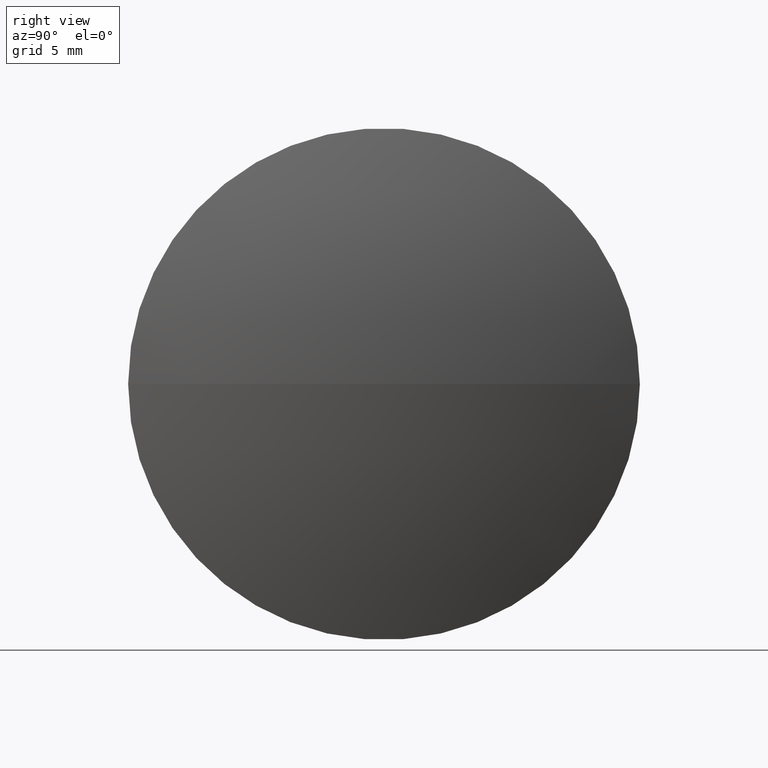
[diagram: clean part render]
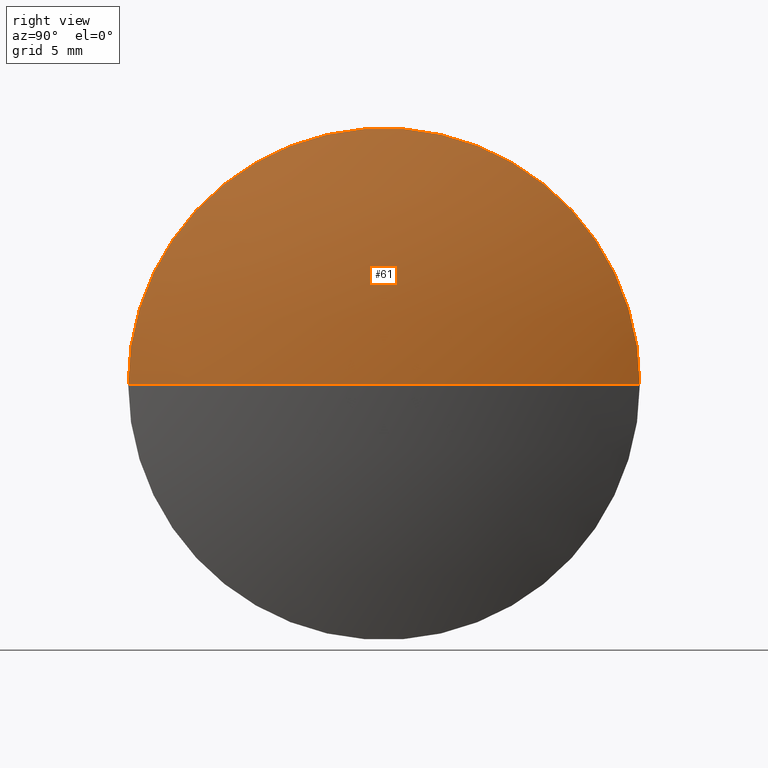
[diagram: same view with one face highlighted and labeled with its STEP entity id]
A machine part, right view. The second image highlights one B-rep face of the part: STEP entity #61.
In plain terms, the highlighted spherical surface has radius 40.9391 mm.
Its self-contained STEP definition (entity closure, byte-faithful):
#7 = AXIS2_PLACEMENT_3D ( 'NONE', #194, #216, #76 ) ;
#11 = ORIENTED_EDGE ( 'NONE', *, *, #264, .F. ) ;
#23 = EDGE_CURVE ( 'NONE', #25, #172, #44, .T. ) ;
#25 = VERTEX_POINT ( 'NONE', #233 ) ;
#28 = EDGE_CURVE ( 'NONE', #232, #172, #164, .T. ) ;
#44 = CIRCLE ( 'NONE', #296, 12.49999999999998400 ) ;
#61 = ADVANCED_FACE ( 'NONE', ( #197 ), #113, .T. ) ;
#71 = DIRECTION ( 'NONE',  ( 4.237323036969965800E-015, 1.000000000000000000, 0.0000000000000000000 ) ) ;
#76 = DIRECTION ( 'NONE',  ( 0.0000000000000000000, 1.000000000000000000, 1.224646799147353200E-016 ) ) ;
#105 = CARTESIAN_POINT ( 'NONE',  ( 85.89164741600619400, 60.35050494407934000, 0.0000000000000000000 ) ) ;
#113 = SPHERICAL_SURFACE ( 'NONE', #131, 40.93913682864445000 ) ;
#114 = DIRECTION ( 'NONE',  ( -1.000000000000000000, 4.264506765781650100E-015, -0.0000000000000000000 ) ) ;
#131 = AXIS2_PLACEMENT_3D ( 'NONE', #287, #168, #71 ) ;
#164 = CIRCLE ( 'NONE', #236, 40.93913682864445700 ) ;
#165 = DIRECTION ( 'NONE',  ( -4.440892098500631700E-015, -1.000000000000000000, 0.0000000000000000000 ) ) ;
#166 = EDGE_LOOP ( 'NONE', ( #11, #246, #293 ) ) ;
#168 = DIRECTION ( 'NONE',  ( 0.0000000000000000000, 0.0000000000000000000, -1.000000000000000000 ) ) ;
#172 = VERTEX_POINT ( 'NONE', #105 ) ;
#187 = DIRECTION ( 'NONE',  ( 0.0000000000000000000, 0.0000000000000000000, 1.000000000000000000 ) ) ;
#191 = DIRECTION ( 'NONE',  ( 1.000000000000000000, 0.0000000000000000000, 0.0000000000000000000 ) ) ;
#194 = CARTESIAN_POINT ( 'NONE',  ( 46.90751058736174200, 47.85050494407934700, 0.0000000000000000000 ) ) ;
#197 = FACE_OUTER_BOUND ( 'NONE', #166, .T. ) ;
#207 = CARTESIAN_POINT ( 'NONE',  ( 46.90751058736174200, 47.85050494407934700, 0.0000000000000000000 ) ) ;
#216 = DIRECTION ( 'NONE',  ( 5.222514560656729000E-031, 1.224646799147353200E-016, -1.000000000000000000 ) ) ;
#232 = VERTEX_POINT ( 'NONE', #241 ) ;
#233 = CARTESIAN_POINT ( 'NONE',  ( 85.89164741600608000, 35.35050494407919800, -1.530808498934189700E-015 ) ) ;
#236 = AXIS2_PLACEMENT_3D ( 'NONE', #207, #187, #191 ) ;
#241 = CARTESIAN_POINT ( 'NONE',  ( 87.84664741600620600, 47.85050494407916900, 0.0000000000000000000 ) ) ;
#246 = ORIENTED_EDGE ( 'NONE', *, *, #28, .T. ) ;
#256 = CARTESIAN_POINT ( 'NONE',  ( 85.89164741600615100, 47.85050494407936100, 0.0000000000000000000 ) ) ;
#264 = EDGE_CURVE ( 'NONE', #232, #25, #273, .T. ) ;
#273 = CIRCLE ( 'NONE', #7, 40.93913682864445700 ) ;
#287 = CARTESIAN_POINT ( 'NONE',  ( 46.90751058736174200, 47.85050494407934700, 0.0000000000000000000 ) ) ;
#293 = ORIENTED_EDGE ( 'NONE', *, *, #23, .F. ) ;
#296 = AXIS2_PLACEMENT_3D ( 'NONE', #256, #114, #165 ) ;